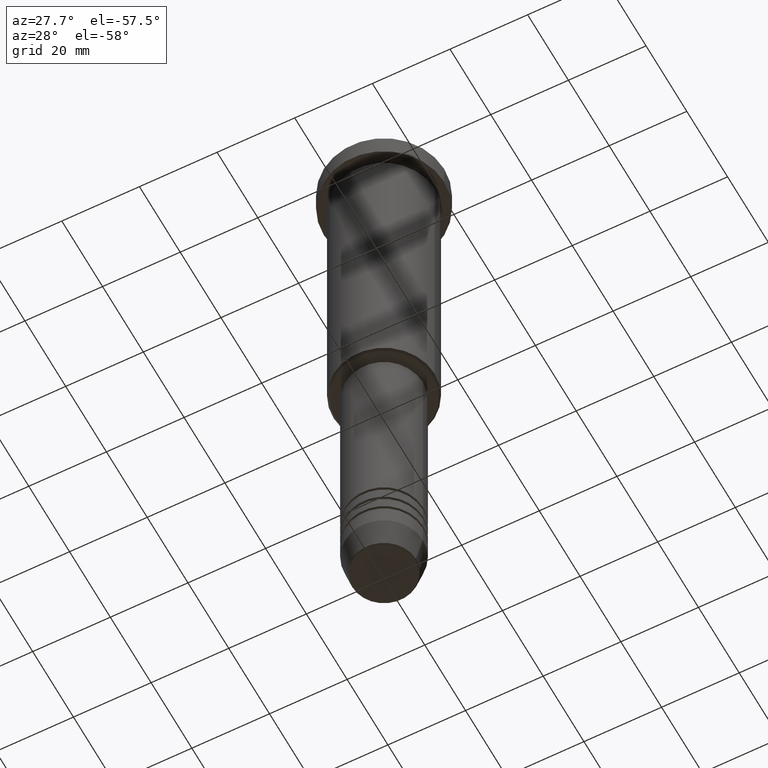
[diagram: clean part render]
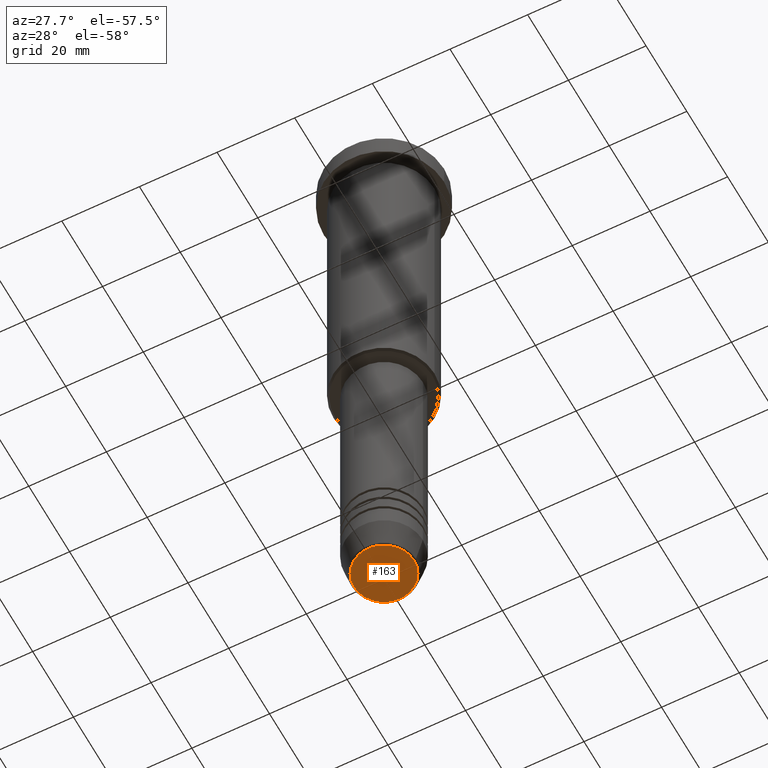
[diagram: same view with one face highlighted and labeled with its STEP entity id]
A machine part, auxiliary view. The second image highlights one B-rep face of the part: STEP entity #163.
In plain terms, the highlighted planar face has unit normal (0, -0, 1).
Its self-contained STEP definition (entity closure, byte-faithful):
#153 = DIRECTION ( 'NONE',  ( 0.000000000000000000, 0.000000000000000000, -1.000000000000000000 ) ) ;
#163 = ADVANCED_FACE ( 'NONE', ( #879 ), #499, .F. ) ;
#177 = ORIENTED_EDGE ( 'NONE', *, *, #1121, .T. ) ;
#208 = DIRECTION ( 'NONE',  ( 1.000000000000000000, 0.000000000000000000, 0.000000000000000000 ) ) ;
#341 = ORIENTED_EDGE ( 'NONE', *, *, #802, .T. ) ;
#398 = CIRCLE ( 'NONE', #743, 7.740692158992660055 ) ;
#498 = DIRECTION ( 'NONE',  ( 1.000000000000000000, 0.000000000000000000, 0.000000000000000000 ) ) ;
#499 = PLANE ( 'NONE',  #1156 ) ;
#602 = VERTEX_POINT ( 'NONE', #666 ) ;
#615 = EDGE_LOOP ( 'NONE', ( #177, #341 ) ) ;
#657 = CARTESIAN_POINT ( 'NONE',  ( 0.000000000000000000, 0.000000000000000000, -160.9999999999999716 ) ) ;
#666 = CARTESIAN_POINT ( 'NONE',  ( 7.740692158992660055, 0.000000000000000000, -160.9999999999999716 ) ) ;
#671 = CARTESIAN_POINT ( 'NONE',  ( 0.000000000000000000, 0.000000000000000000, -160.9999999999999716 ) ) ;
#721 = AXIS2_PLACEMENT_3D ( 'NONE', #657, #1109, #208 ) ;
#743 = AXIS2_PLACEMENT_3D ( 'NONE', #671, #153, #498 ) ;
#796 = DIRECTION ( 'NONE',  ( 1.000000000000000000, 0.000000000000000000, 0.000000000000000000 ) ) ;
#802 = EDGE_CURVE ( 'NONE', #926, #602, #398, .T. ) ;
#867 = CARTESIAN_POINT ( 'NONE',  ( 0.000000000000000000, 0.000000000000000000, -160.9999999999999716 ) ) ;
#879 = FACE_OUTER_BOUND ( 'NONE', #615, .T. ) ;
#926 = VERTEX_POINT ( 'NONE', #1062 ) ;
#1062 = CARTESIAN_POINT ( 'NONE',  ( -7.740692158992660055, 9.775343368540039135E-16, -160.9999999999999716 ) ) ;
#1101 = CIRCLE ( 'NONE', #721, 7.740692158992660055 ) ;
#1109 = DIRECTION ( 'NONE',  ( 0.000000000000000000, 0.000000000000000000, -1.000000000000000000 ) ) ;
#1121 = EDGE_CURVE ( 'NONE', #602, #926, #1101, .T. ) ;
#1130 = DIRECTION ( 'NONE',  ( 0.000000000000000000, -0.000000000000000000, 1.000000000000000000 ) ) ;
#1156 = AXIS2_PLACEMENT_3D ( 'NONE', #867, #1130, #796 ) ;